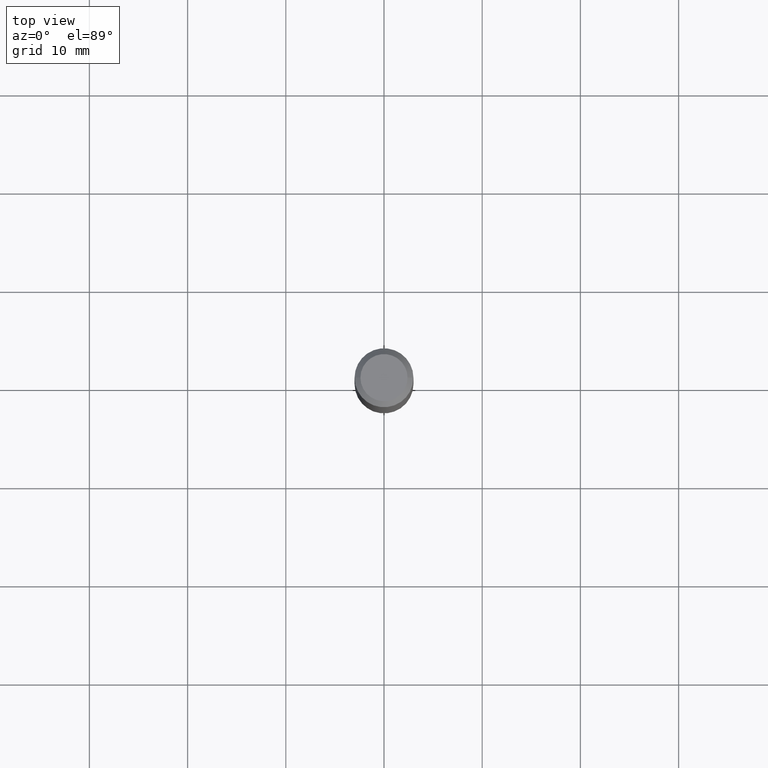
[diagram: clean part render]
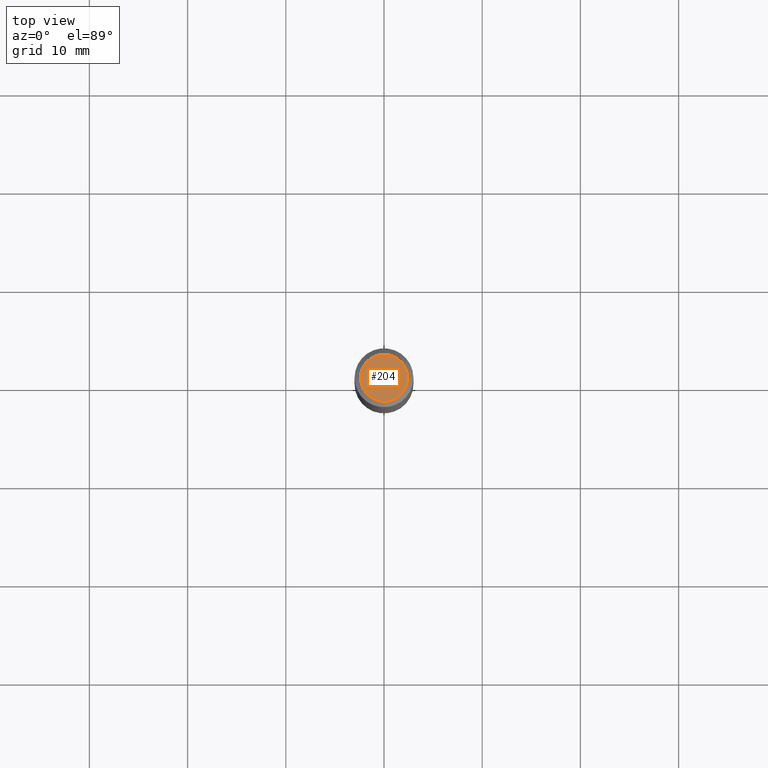
[diagram: same view with one face highlighted and labeled with its STEP entity id]
A machine part, top view. The second image highlights one B-rep face of the part: STEP entity #204.
In plain terms, the highlighted planar face has unit normal (0, -0, -1).
Its self-contained STEP definition (entity closure, byte-faithful):
#39 = VERTEX_POINT ( 'NONE', #341 ) ;
#72 = CARTESIAN_POINT ( 'NONE',  ( -0.09447999999999998066, 7.009847083995354710E-16, -1.928573779297727792E-17 ) ) ;
#131 = DIRECTION ( 'NONE',  ( 2.438088387897960049E-29, -3.491481338843145188E-15, -1.000000000000000000 ) ) ;
#135 = CARTESIAN_POINT ( 'NONE',  ( 4.716267017698007905E-46, -6.733579360998555036E-32, -1.928573779297252010E-17 ) ) ;
#136 = FACE_OUTER_BOUND ( 'NONE', #364, .T. ) ;
#179 = DIRECTION ( 'NONE',  ( 1.000000000000000000, -6.982962677686267499E-15, 4.875432709231658792E-29 ) ) ;
#204 = ADVANCED_FACE ( 'NONE', ( #136 ), #466, .F. ) ;
#215 = DIRECTION ( 'NONE',  ( -2.445468806185136597E-29, 3.491481338843145583E-15, 1.000000000000000000 ) ) ;
#217 = DIRECTION ( 'NONE',  ( 1.000000000000000000, -6.982962677686267499E-15, 4.875432709231658792E-29 ) ) ;
#274 = DIRECTION ( 'NONE',  ( -1.000000000000000000, 6.982962677686265922E-15, -4.876176775795935793E-29 ) ) ;
#328 = AXIS2_PLACEMENT_3D ( 'NONE', #135, #215, #217 ) ;
#341 = CARTESIAN_POINT ( 'NONE',  ( 0.09447999999999998066, -7.704367267948738690E-16, -1.928573779296752193E-17 ) ) ;
#361 = CIRCLE ( 'NONE', #424, 0.09447999999999998066 ) ;
#364 = EDGE_LOOP ( 'NONE', ( #406, #452 ) ) ;
#387 = EDGE_CURVE ( 'NONE', #39, #413, #483, .T. ) ;
#388 = CARTESIAN_POINT ( 'NONE',  ( 2.358133508849003952E-46, -3.366789680499277518E-32, -9.642868896486260050E-18 ) ) ;
#400 = CARTESIAN_POINT ( 'NONE',  ( 4.716267017698007905E-46, -6.733579360998555036E-32, -1.928573779297252010E-17 ) ) ;
#406 = ORIENTED_EDGE ( 'NONE', *, *, #441, .T. ) ;
#413 = VERTEX_POINT ( 'NONE', #72 ) ;
#424 = AXIS2_PLACEMENT_3D ( 'NONE', #400, #437, #179 ) ;
#437 = DIRECTION ( 'NONE',  ( -2.445468806185136597E-29, 3.491481338843145583E-15, 1.000000000000000000 ) ) ;
#441 = EDGE_CURVE ( 'NONE', #413, #39, #361, .T. ) ;
#452 = ORIENTED_EDGE ( 'NONE', *, *, #387, .T. ) ;
#466 = PLANE ( 'NONE',  #474 ) ;
#474 = AXIS2_PLACEMENT_3D ( 'NONE', #388, #131, #274 ) ;
#483 = CIRCLE ( 'NONE', #328, 0.09447999999999998066 ) ;